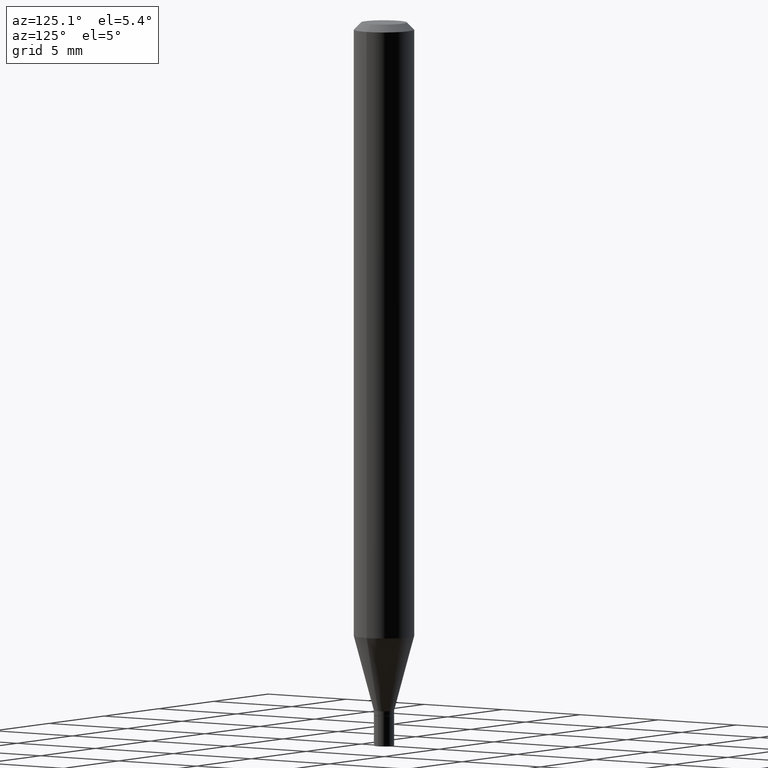
[diagram: clean part render]
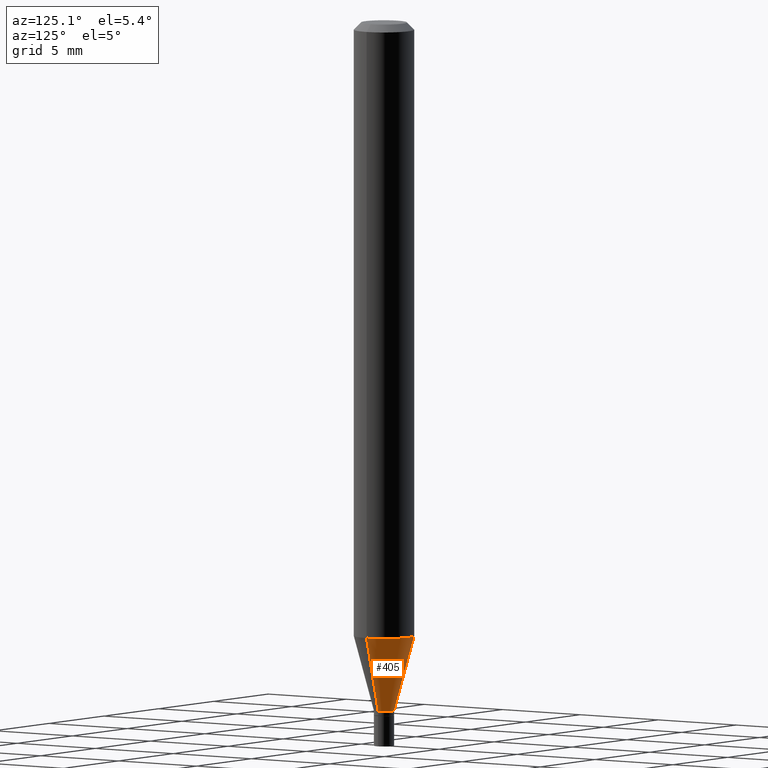
[diagram: same view with one face highlighted and labeled with its STEP entity id]
A machine part, auxiliary view. The second image highlights one B-rep face of the part: STEP entity #405.
In plain terms, the highlighted conical surface has half-angle 15 deg.
Its self-contained STEP definition (entity closure, byte-faithful):
#19 = VECTOR ( 'NONE', #326, 39.37007874015748854 ) ;
#39 = EDGE_CURVE ( 'NONE', #56, #168, #160, .T. ) ;
#44 = DIRECTION ( 'NONE',  ( 1.000000000000000000, -6.982962677686265922E-15, 0.000000000000000000 ) ) ;
#56 = VERTEX_POINT ( 'NONE', #384 ) ;
#86 = VECTOR ( 'NONE', #306, 39.37007874015748854 ) ;
#100 = ORIENTED_EDGE ( 'NONE', *, *, #154, .T. ) ;
#102 = DIRECTION ( 'NONE',  ( -2.445468806185136597E-29, 3.491481338843145583E-15, 1.000000000000000000 ) ) ;
#110 = DIRECTION ( 'NONE',  ( -2.445468806185136597E-29, 3.491481338843145583E-15, 1.000000000000000000 ) ) ;
#124 = VERTEX_POINT ( 'NONE', #438 ) ;
#134 = CARTESIAN_POINT ( 'NONE',  ( 3.489683986426190072E-29, -4.982343870529169189E-15, -1.427000000000000046 ) ) ;
#140 = EDGE_CURVE ( 'NONE', #342, #124, #314, .T. ) ;
#143 = CARTESIAN_POINT ( 'NONE',  ( 3.489683986426190072E-29, -4.982343870529169189E-15, -1.427000000000000046 ) ) ;
#145 = ORIENTED_EDGE ( 'NONE', *, *, #140, .F. ) ;
#150 = CARTESIAN_POINT ( 'NONE',  ( 0.02099999999999992498, -5.128986086760580222E-15, -1.427000000000000046 ) ) ;
#153 = DIRECTION ( 'NONE',  ( -2.445468806185136597E-29, 3.491481338843145583E-15, 1.000000000000000000 ) ) ;
#154 = EDGE_CURVE ( 'NONE', #342, #56, #285, .T. ) ;
#160 = LINE ( 'NONE', #347, #86 ) ;
#168 = VERTEX_POINT ( 'NONE', #433 ) ;
#171 = AXIS2_PLACEMENT_3D ( 'NONE', #134, #102, #44 ) ;
#190 = CIRCLE ( 'NONE', #309, 0.06250000000000000000 ) ;
#192 = ORIENTED_EDGE ( 'NONE', *, *, #39, .T. ) ;
#201 = DIRECTION ( 'NONE',  ( 1.000000000000000000, -6.982962677686265922E-15, 0.000000000000000000 ) ) ;
#225 = CONICAL_SURFACE ( 'NONE', #313, 0.02099999999999992498, 0.2617993877991504625 ) ;
#245 = CARTESIAN_POINT ( 'NONE',  ( 3.110929512356370285E-29, -4.441582861894159323E-15, -1.272119891485891996 ) ) ;
#285 = CIRCLE ( 'NONE', #171, 0.02099999999999992498 ) ;
#306 = DIRECTION ( 'NONE',  ( -0.2588190451025217387, 5.211531920934551042E-15, 0.9659258262890679791 ) ) ;
#309 = AXIS2_PLACEMENT_3D ( 'NONE', #245, #153, #377 ) ;
#313 = AXIS2_PLACEMENT_3D ( 'NONE', #143, #110, #201 ) ;
#314 = LINE ( 'NONE', #462, #19 ) ;
#326 = DIRECTION ( 'NONE',  ( 0.2588190451025217387, 1.565188264969619207E-15, 0.9659258262890679791 ) ) ;
#342 = VERTEX_POINT ( 'NONE', #150 ) ;
#347 = CARTESIAN_POINT ( 'NONE',  ( -0.02099999999999992498, -4.833129896019548018E-15, -1.427000000000000046 ) ) ;
#365 = EDGE_CURVE ( 'NONE', #124, #168, #190, .T. ) ;
#377 = DIRECTION ( 'NONE',  ( 1.000000000000000000, -6.982962677686262766E-15, 0.000000000000000000 ) ) ;
#384 = CARTESIAN_POINT ( 'NONE',  ( -0.02099999999999992498, -4.415311774031822362E-15, -1.427000000000000046 ) ) ;
#399 = FACE_OUTER_BOUND ( 'NONE', #444, .T. ) ;
#405 = ADVANCED_FACE ( 'NONE', ( #399 ), #225, .T. ) ;
#427 = ORIENTED_EDGE ( 'NONE', *, *, #365, .F. ) ;
#433 = CARTESIAN_POINT ( 'NONE',  ( -0.06250000000000000000, -3.997493652044096706E-15, -1.272119891485891996 ) ) ;
#438 = CARTESIAN_POINT ( 'NONE',  ( 0.06250000000000000000, -4.878018029249550992E-15, -1.272119891485891996 ) ) ;
#444 = EDGE_LOOP ( 'NONE', ( #100, #192, #427, #145 ) ) ;
#462 = CARTESIAN_POINT ( 'NONE',  ( 0.02099999999999992498, -5.128986086760580222E-15, -1.427000000000000046 ) ) ;